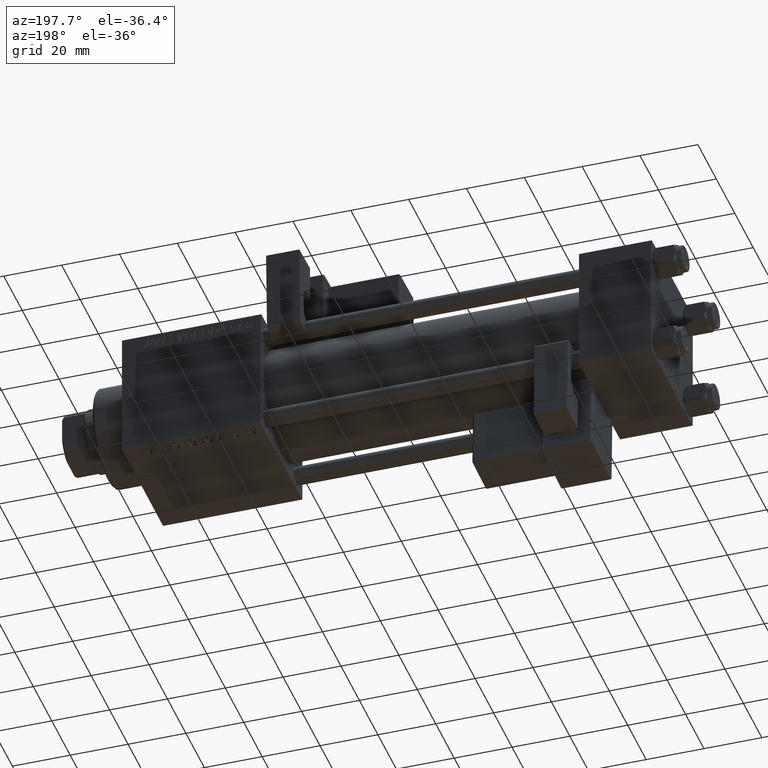
[diagram: clean part render]
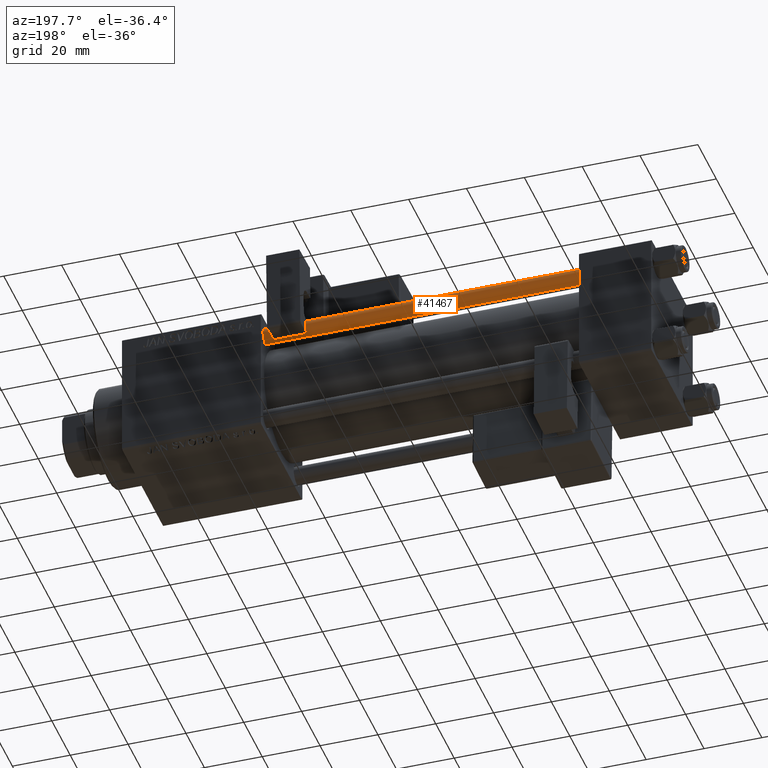
[diagram: same view with one face highlighted and labeled with its STEP entity id]
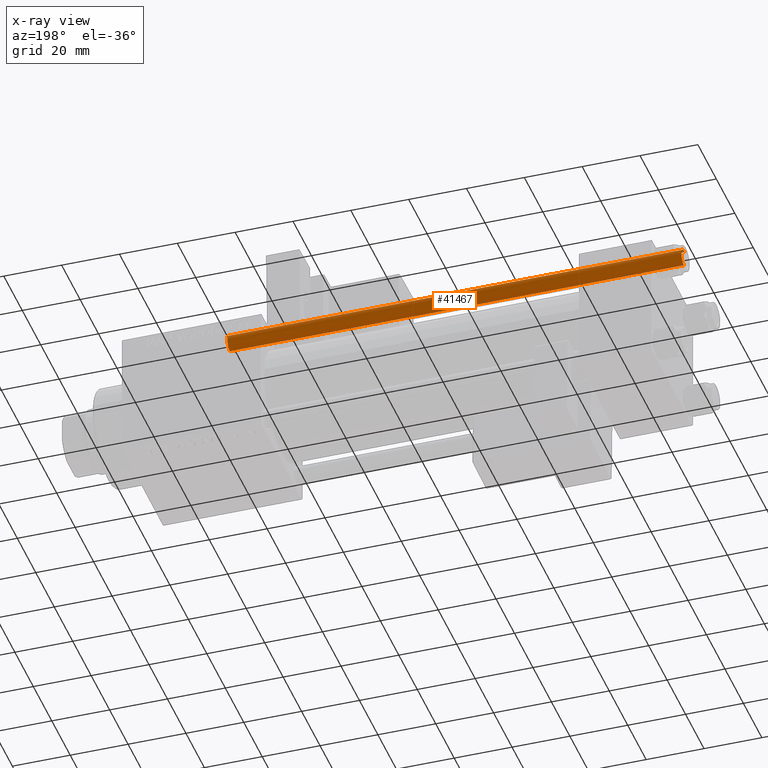
[diagram: x-ray of the same camera — body ghosted, the highlighted face saturated]
A machine part, auxiliary view. The second image highlights one B-rep face of the part: STEP entity #41467.
The next image is the same camera in x-ray: the body ghosted, the highlighted face saturated — about 0% of this face is hidden behind the body in this view.
In plain terms, the highlighted cylindrical surface (edge-blend (fillet) strip) has radius 3 mm, axis along (-1, 0, 0).
Its self-contained STEP definition (entity closure, byte-faithful):
#3875 = CARTESIAN_POINT ( 'NONE',  ( 3.000000000000000444, 3.673940397442060361E-16, 157.5000000000000000 ) ) ;
#3937 = EDGE_CURVE ( 'NONE', #48529, #38733, #53612, .T. ) ;
#6400 = CARTESIAN_POINT ( 'NONE',  ( -3.000000000000000444, 0.000000000000000000, 0.5000000000000281997 ) ) ;
#6413 = DIRECTION ( 'NONE',  ( 0.000000000000000000, 0.000000000000000000, -1.000000000000000000 ) ) ;
#6745 = AXIS2_PLACEMENT_3D ( 'NONE', #15887, #32453, #43902 ) ;
#8037 = DIRECTION ( 'NONE',  ( -1.000000000000000000, 0.000000000000000000, 0.000000000000000000 ) ) ;
#11446 = LINE ( 'NONE', #28008, #22055 ) ;
#11637 = AXIS2_PLACEMENT_3D ( 'NONE', #48548, #6413, #47742 ) ;
#11954 = ORIENTED_EDGE ( 'NONE', *, *, #39634, .F. ) ;
#12399 = CYLINDRICAL_SURFACE ( 'NONE', #17791, 3.000000000000000444 ) ;
#14186 = LINE ( 'NONE', #18518, #48891 ) ;
#14763 = EDGE_CURVE ( 'NONE', #15575, #48529, #14186, .T. ) ;
#15575 = VERTEX_POINT ( 'NONE', #3875 ) ;
#15887 = CARTESIAN_POINT ( 'NONE',  ( 0.000000000000000000, 0.000000000000000000, 0.5000000000000281997 ) ) ;
#16105 = CARTESIAN_POINT ( 'NONE',  ( 3.000000000000000444, 3.673940397442060361E-16, 0.5000000000000281997 ) ) ;
#17791 = AXIS2_PLACEMENT_3D ( 'NONE', #28701, #53152, #8037 ) ;
#18518 = CARTESIAN_POINT ( 'NONE',  ( 3.000000000000000444, 3.673940397442060361E-16, 158.0000000000000000 ) ) ;
#22055 = VECTOR ( 'NONE', #44595, 1000.000000000000000 ) ;
#22143 = ORIENTED_EDGE ( 'NONE', *, *, #3937, .T. ) ;
#28008 = CARTESIAN_POINT ( 'NONE',  ( -3.000000000000000444, 0.000000000000000000, 158.0000000000000000 ) ) ;
#28701 = CARTESIAN_POINT ( 'NONE',  ( 0.000000000000000000, 0.000000000000000000, 158.0000000000000000 ) ) ;
#31208 = CARTESIAN_POINT ( 'NONE',  ( -3.000000000000000444, 0.000000000000000000, 157.5000000000000000 ) ) ;
#32453 = DIRECTION ( 'NONE',  ( -0.000000000000000000, -0.000000000000000000, 1.000000000000000000 ) ) ;
#34873 = EDGE_CURVE ( 'NONE', #37355, #15575, #42867, .T. ) ;
#36597 = FACE_OUTER_BOUND ( 'NONE', #39303, .T. ) ;
#37355 = VERTEX_POINT ( 'NONE', #31208 ) ;
#38511 = ORIENTED_EDGE ( 'NONE', *, *, #34873, .T. ) ;
#38733 = VERTEX_POINT ( 'NONE', #6400 ) ;
#39303 = EDGE_LOOP ( 'NONE', ( #38511, #43350, #22143, #11954 ) ) ;
#39634 = EDGE_CURVE ( 'NONE', #37355, #38733, #11446, .T. ) ;
#41467 = ADVANCED_FACE ( 'NONE', ( #36597 ), #12399, .T. ) ;
#42867 = CIRCLE ( 'NONE', #11637, 3.000000000000000444 ) ;
#43350 = ORIENTED_EDGE ( 'NONE', *, *, #14763, .T. ) ;
#43902 = DIRECTION ( 'NONE',  ( 1.000000000000000000, 0.000000000000000000, 0.000000000000000000 ) ) ;
#44595 = DIRECTION ( 'NONE',  ( -0.000000000000000000, -0.000000000000000000, -1.000000000000000000 ) ) ;
#47742 = DIRECTION ( 'NONE',  ( 1.000000000000000000, 0.000000000000000000, 0.000000000000000000 ) ) ;
#47868 = DIRECTION ( 'NONE',  ( -0.000000000000000000, -0.000000000000000000, -1.000000000000000000 ) ) ;
#48529 = VERTEX_POINT ( 'NONE', #16105 ) ;
#48548 = CARTESIAN_POINT ( 'NONE',  ( 0.000000000000000000, 0.000000000000000000, 157.5000000000000000 ) ) ;
#48891 = VECTOR ( 'NONE', #47868, 1000.000000000000000 ) ;
#53152 = DIRECTION ( 'NONE',  ( -0.000000000000000000, -0.000000000000000000, -1.000000000000000000 ) ) ;
#53612 = CIRCLE ( 'NONE', #6745, 3.000000000000000444 ) ;